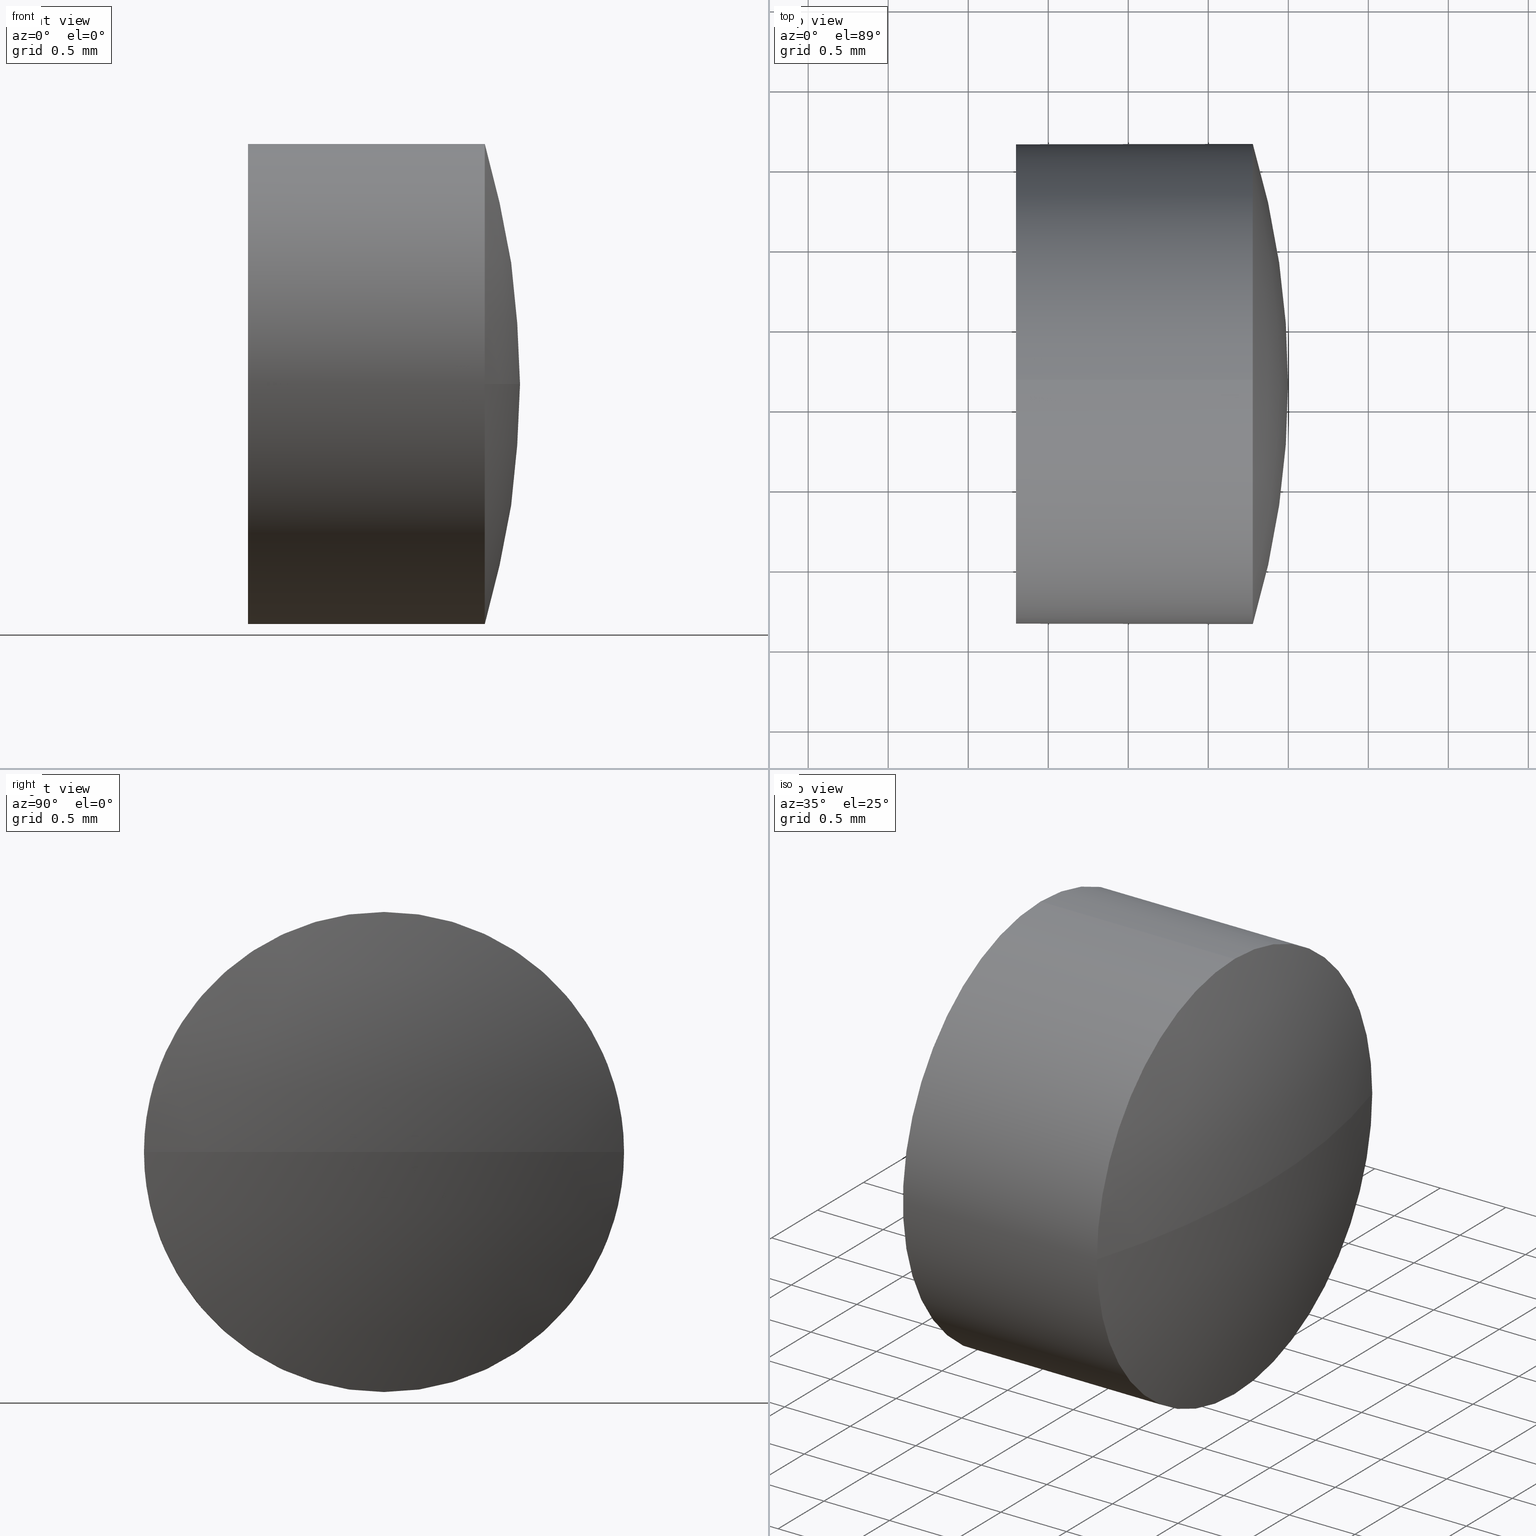
[diagram: canonical four-view strip — front | top / right | iso, engineering-drawing reading convention]
A machine part, canonical four-view strip (front | top / right | iso — engineering-drawing reading convention). The complete STEP part file that produces these views, byte-faithful:
ISO-10303-21;
HEADER;
FILE_DESCRIPTION (( 'STEP AP214' ),
    '1' );
FILE_NAME ('100087.STEP',
    '2019-05-13T02:27:40',
    ( '' ),
    ( '' ),
    'SwSTEP 2.0',
    'SolidWorks 2016',
    '' );
FILE_SCHEMA (( 'AUTOMOTIVE_DESIGN' ));
ENDSEC;

DATA;
#1 =( GEOMETRIC_REPRESENTATION_CONTEXT ( 3 ) GLOBAL_UNCERTAINTY_ASSIGNED_CONTEXT ( ( #95 ) ) GLOBAL_UNIT_ASSIGNED_CONTEXT ( ( #62, #166, #77 ) ) REPRESENTATION_CONTEXT ( 'NONE', 'WORKASPACE' ) );
#2 = ORIENTED_EDGE ( 'NONE', *, *, #38, .F. ) ;
#3 = CYLINDRICAL_SURFACE ( 'NONE', #140, 1.499999999984999600 ) ;
#4 = PRODUCT_DEFINITION_FORMATION_WITH_SPECIFIED_SOURCE ( '�κ�', '', #100, .NOT_KNOWN. ) ;
#5 = ADVANCED_FACE ( 'NONE', ( #84 ), #3, .T. ) ;
#6 = COLOUR_RGB ( '',1.000000000000000000, 1.000000000000000000, 1.000000000000000000 ) ;
#7 = DIRECTION ( 'NONE',  ( 0.0000000000000000000, 0.0000000000000000000, 1.000000000000000000 ) ) ;
#8 = EDGE_LOOP ( 'NONE', ( #112, #181, #176, #101 ) ) ;
#9 = DIRECTION ( 'NONE',  ( -1.000000000000000000, -0.0000000000000000000, -0.0000000000000000000 ) ) ;
#10 = CARTESIAN_POINT ( 'NONE',  ( 475.5668287604860300, 73.14784035914851800, -1.499999999984999600 ) ) ;
#11 = CIRCLE ( 'NONE', #99, 1.499999999984999600 ) ;
#12 = CARTESIAN_POINT ( 'NONE',  ( 477.2783291331324400, 73.14784035914851800, 1.499999999984999600 ) ) ;
#13 = STYLED_ITEM ( 'NONE', ( #185 ), #162 ) ;
#14 = AXIS2_PLACEMENT_3D ( 'NONE', #37, #172, #83 ) ;
#15 = DIRECTION ( 'NONE',  ( -1.000000000000000000, -0.0000000000000000000, -0.0000000000000000000 ) ) ;
#16 = EDGE_LOOP ( 'NONE', ( #177, #145, #34, #163, #134 ) ) ;
#17 = APPLICATION_PROTOCOL_DEFINITION ( 'draft international standard', 'automotive_design', 1998, #49 ) ;
#18 = EDGE_CURVE ( 'NONE', #175, #160, #74, .T. ) ;
#19 = CARTESIAN_POINT ( 'NONE',  ( 477.2783291331324400, 73.14784035914851800, 0.0000000000000000000 ) ) ;
#20 = DIRECTION ( 'NONE',  ( -1.000000000000000000, -0.0000000000000000000, -0.0000000000000000000 ) ) ;
#21 = PRESENTATION_STYLE_ASSIGNMENT (( #136 ) ) ;
#22 = DIRECTION ( 'NONE',  ( 0.0000000000000000000, 0.0000000000000000000, -1.000000000000000000 ) ) ;
#23 = PLANE ( 'NONE',  #47 ) ;
#24 = ORIENTED_EDGE ( 'NONE', *, *, #86, .T. ) ;
#25 =( LENGTH_UNIT ( ) NAMED_UNIT ( * ) SI_UNIT ( .MILLI., .METRE. ) );
#26 = FILL_AREA_STYLE ('',( #111 ) ) ;
#27 = CLOSED_SHELL ( 'NONE', ( #89, #73, #44, #5, #56 ) ) ;
#28 = CIRCLE ( 'NONE', #123, 1.499999999984999600 ) ;
#29 = VECTOR ( 'NONE', #149, 1000.000000000000000 ) ;
#30 = CARTESIAN_POINT ( 'NONE',  ( 472.2751274152541300, 73.14784035914854600, 0.0000000000000000000 ) ) ;
#31 = DIRECTION ( 'NONE',  ( 0.0000000000000000000, 0.0000000000000000000, 1.000000000000000000 ) ) ;
#32 = FILL_AREA_STYLE_COLOUR ( '', #6 ) ;
#33 = EDGE_CURVE ( 'NONE', #114, #93, #42, .T. ) ;
#34 = ORIENTED_EDGE ( 'NONE', *, *, #115, .F. ) ;
#35 = DIRECTION ( 'NONE',  ( 0.0000000000000000000, 0.0000000000000000000, 1.000000000000000000 ) ) ;
#36 = PRODUCT_DEFINITION_CONTEXT ( 'detailed design', #49, 'design' ) ;
#37 = CARTESIAN_POINT ( 'NONE',  ( 0.0000000000000000000, 0.0000000000000000000, 0.0000000000000000000 ) ) ;
#38 = EDGE_CURVE ( 'NONE', #126, #114, #118, .T. ) ;
#39 = EDGE_LOOP ( 'NONE', ( #116, #98, #24, #51, #69 ) ) ;
#40 =( NAMED_UNIT ( * ) SI_UNIT ( $, .STERADIAN. ) SOLID_ANGLE_UNIT ( ) );
#41 = EDGE_CURVE ( 'NONE', #65, #160, #70, .T. ) ;
#42 = CIRCLE ( 'NONE', #182, 1.499999999984999600 ) ;
#43 = AXIS2_PLACEMENT_3D ( 'NONE', #80, #183, #66 ) ;
#44 = ADVANCED_FACE ( 'NONE', ( #150 ), #186, .T. ) ;
#45 = CARTESIAN_POINT ( 'NONE',  ( 475.7983291331472600, 73.14784035914851800, 0.0000000000000000000 ) ) ;
#46 = CARTESIAN_POINT ( 'NONE',  ( 475.7983291331472600, 73.14784035914851800, 0.0000000000000000000 ) ) ;
#47 = AXIS2_PLACEMENT_3D ( 'NONE', #46, #96, #22 ) ;
#48 =( NAMED_UNIT ( * ) SI_UNIT ( $, .STERADIAN. ) SOLID_ANGLE_UNIT ( ) );
#49 = APPLICATION_CONTEXT ( 'automotive_design' ) ;
#50 = EDGE_CURVE ( 'NONE', #175, #126, #11, .T. ) ;
#51 = ORIENTED_EDGE ( 'NONE', *, *, #18, .T. ) ;
#52 =( GEOMETRIC_REPRESENTATION_CONTEXT ( 3 ) GLOBAL_UNCERTAINTY_ASSIGNED_CONTEXT ( ( #54 ) ) GLOBAL_UNIT_ASSIGNED_CONTEXT ( ( #97, #184, #48 ) ) REPRESENTATION_CONTEXT ( 'NONE', 'WORKASPACE' ) );
#53 = VECTOR ( 'NONE', #91, 1000.000000000000000 ) ;
#54 = UNCERTAINTY_MEASURE_WITH_UNIT (LENGTH_MEASURE( 1.000000000000000100E-005 ), #97, 'distance_accuracy_value', 'NONE');
#55 = EDGE_CURVE ( 'NONE', #110, #93, #81, .T. ) ;
#56 = ADVANCED_FACE ( 'NONE', ( #146 ), #23, .F. ) ;
#57 = MANIFOLD_SOLID_BREP ( '��ת1', #27 ) ;
#58 = CIRCLE ( 'NONE', #43, 1.499999999984999600 ) ;
#59 = EDGE_LOOP ( 'NONE', ( #153, #170, #103, #2 ) ) ;
#60 = CARTESIAN_POINT ( 'NONE',  ( 477.2783291331324400, 73.14784035914851800, 0.0000000000000000000 ) ) ;
#61 = DIRECTION ( 'NONE',  ( 0.0000000000000000000, 0.0000000000000000000, 1.000000000000000000 ) ) ;
#62 =( LENGTH_UNIT ( ) NAMED_UNIT ( * ) SI_UNIT ( .MILLI., .METRE. ) );
#63 = AXIS2_PLACEMENT_3D ( 'NONE', #60, #133, #164 ) ;
#64 = CARTESIAN_POINT ( 'NONE',  ( 477.4983474402708900, 73.14784035914854600, 0.0000000000000000000 ) ) ;
#65 = VERTEX_POINT ( 'NONE', #154 ) ;
#66 = DIRECTION ( 'NONE',  ( 0.0000000000000000000, 0.0000000000000000000, 1.000000000000000000 ) ) ;
#67 = PRESENTATION_LAYER_ASSIGNMENT (  '', '', ( #147 ) ) ;
#68 = SURFACE_STYLE_USAGE ( .BOTH. , #109 ) ;
#69 = ORIENTED_EDGE ( 'NONE', *, *, #41, .F. ) ;
#70 = CIRCLE ( 'NONE', #132, 1.499999999984999600 ) ;
#71 = ORIENTED_EDGE ( 'NONE', *, *, #41, .T. ) ;
#72 = DIRECTION ( 'NONE',  ( 0.0000000000000000000, 0.0000000000000000000, 1.000000000000000000 ) ) ;
#73 = ADVANCED_FACE ( 'NONE', ( #105 ), #157, .T. ) ;
#74 = LINE ( 'NONE', #88, #29 ) ;
#75 =( GEOMETRIC_REPRESENTATION_CONTEXT ( 3 ) GLOBAL_UNCERTAINTY_ASSIGNED_CONTEXT ( ( #169 ) ) GLOBAL_UNIT_ASSIGNED_CONTEXT ( ( #25, #127, #40 ) ) REPRESENTATION_CONTEXT ( 'NONE', 'WORKASPACE' ) );
#76 = CARTESIAN_POINT ( 'NONE',  ( 477.2783291331324400, 74.64784035913355400, 1.836970198702661100E-016 ) ) ;
#77 =( NAMED_UNIT ( * ) SI_UNIT ( $, .STERADIAN. ) SOLID_ANGLE_UNIT ( ) );
#78 = CARTESIAN_POINT ( 'NONE',  ( 477.2783291331324400, 73.14784035914851800, -1.499999999984999600 ) ) ;
#79 = PRESENTATION_LAYER_ASSIGNMENT (  '', '', ( #13 ) ) ;
#80 = CARTESIAN_POINT ( 'NONE',  ( 475.7983291331472600, 73.14784035914851800, 0.0000000000000000000 ) ) ;
#81 = CIRCLE ( 'NONE', #165, 5.223220025016739300 ) ;
#82 = SURFACE_STYLE_FILL_AREA ( #26 ) ;
#83 = DIRECTION ( 'NONE',  ( 1.000000000000000000, 0.0000000000000000000, 0.0000000000000000000 ) ) ;
#84 = FACE_OUTER_BOUND ( 'NONE', #39, .T. ) ;
#85 = MECHANICAL_DESIGN_GEOMETRIC_PRESENTATION_REPRESENTATION (  '', ( #147 ), #1 ) ;
#86 = EDGE_CURVE ( 'NONE', #93, #175, #28, .T. ) ;
#87 = DIRECTION ( 'NONE',  ( 0.0000000000000000000, 0.0000000000000000000, 1.000000000000000000 ) ) ;
#88 = CARTESIAN_POINT ( 'NONE',  ( 475.5668287604860300, 73.14784035914851800, 1.499999999984999600 ) ) ;
#89 = ADVANCED_FACE ( 'NONE', ( #161 ), #148, .T. ) ;
#90 = SHAPE_DEFINITION_REPRESENTATION ( #143, #162 ) ;
#91 = DIRECTION ( 'NONE',  ( -1.000000000000000000, -0.0000000000000000000, -0.0000000000000000000 ) ) ;
#92 = LINE ( 'NONE', #10, #53 ) ;
#93 = VERTEX_POINT ( 'NONE', #167 ) ;
#94 = DIRECTION ( 'NONE',  ( -1.000000000000000000, -0.0000000000000000000, -0.0000000000000000000 ) ) ;
#95 = UNCERTAINTY_MEASURE_WITH_UNIT (LENGTH_MEASURE( 1.000000000000000100E-005 ), #62, 'distance_accuracy_value', 'NONE');
#96 = DIRECTION ( 'NONE',  ( 1.000000000000000000, 0.0000000000000000000, 0.0000000000000000000 ) ) ;
#97 =( LENGTH_UNIT ( ) NAMED_UNIT ( * ) SI_UNIT ( .MILLI., .METRE. ) );
#98 = ORIENTED_EDGE ( 'NONE', *, *, #33, .T. ) ;
#99 = AXIS2_PLACEMENT_3D ( 'NONE', #119, #94, #7 ) ;
#100 = PRODUCT ( '100087', '100087', '', ( #142 ) ) ;
#101 = ORIENTED_EDGE ( 'NONE', *, *, #86, .F. ) ;
#102 = AXIS2_PLACEMENT_3D ( 'NONE', #158, #125, #141 ) ;
#103 = ORIENTED_EDGE ( 'NONE', *, *, #33, .F. ) ;
#104 = CARTESIAN_POINT ( 'NONE',  ( 475.5668287604860300, 73.14784035914851800, 0.0000000000000000000 ) ) ;
#105 = FACE_OUTER_BOUND ( 'NONE', #8, .T. ) ;
#106 = SURFACE_STYLE_FILL_AREA ( #122 ) ;
#107 = DIRECTION ( 'NONE',  ( 0.0000000000000000000, 0.0000000000000000000, 1.000000000000000000 ) ) ;
#108 = DIRECTION ( 'NONE',  ( 0.0000000000000000000, 0.0000000000000000000, -1.000000000000000000 ) ) ;
#109 = SURFACE_SIDE_STYLE ('',( #82 ) ) ;
#110 = VERTEX_POINT ( 'NONE', #64 ) ;
#111 = FILL_AREA_STYLE_COLOUR ( '', #173 ) ;
#112 = ORIENTED_EDGE ( 'NONE', *, *, #55, .F. ) ;
#113 = AXIS2_PLACEMENT_3D ( 'NONE', #120, #31, #139 ) ;
#114 = VERTEX_POINT ( 'NONE', #78 ) ;
#115 = EDGE_CURVE ( 'NONE', #160, #65, #58, .T. ) ;
#116 = ORIENTED_EDGE ( 'NONE', *, *, #117, .F. ) ;
#117 = EDGE_CURVE ( 'NONE', #114, #65, #92, .T. ) ;
#118 = CIRCLE ( 'NONE', #63, 1.499999999984999600 ) ;
#119 = CARTESIAN_POINT ( 'NONE',  ( 477.2783291331324400, 73.14784035914851800, 0.0000000000000000000 ) ) ;
#120 = CARTESIAN_POINT ( 'NONE',  ( 472.2751274152541300, 73.14784035914854600, 0.0000000000000000000 ) ) ;
#121 = CARTESIAN_POINT ( 'NONE',  ( 472.2751274152541300, 73.14784035914854600, 0.0000000000000000000 ) ) ;
#122 = FILL_AREA_STYLE ('',( #32 ) ) ;
#123 = AXIS2_PLACEMENT_3D ( 'NONE', #180, #9, #61 ) ;
#124 = DIRECTION ( 'NONE',  ( 0.0000000000000000000, -1.000000000000000000, 0.0000000000000000000 ) ) ;
#125 = DIRECTION ( 'NONE',  ( 0.0000000000000000000, -1.224646799147353200E-016, 1.000000000000000000 ) ) ;
#126 = VERTEX_POINT ( 'NONE', #76 ) ;
#127 =( NAMED_UNIT ( * ) PLANE_ANGLE_UNIT ( ) SI_UNIT ( $, .RADIAN. ) );
#128 = APPLICATION_PROTOCOL_DEFINITION ( 'draft international standard', 'automotive_design', 1998, #156 ) ;
#129 = EDGE_LOOP ( 'NONE', ( #138, #71 ) ) ;
#130 = DIRECTION ( 'NONE',  ( -1.000000000000000000, -0.0000000000000000000, -0.0000000000000000000 ) ) ;
#131 = PRODUCT_DEFINITION ( 'δ֪', '', #4, #36 ) ;
#132 = AXIS2_PLACEMENT_3D ( 'NONE', #45, #20, #152 ) ;
#133 = DIRECTION ( 'NONE',  ( -1.000000000000000000, -0.0000000000000000000, -0.0000000000000000000 ) ) ;
#134 = ORIENTED_EDGE ( 'NONE', *, *, #50, .T. ) ;
#135 = DIRECTION ( 'NONE',  ( -1.000000000000000000, -0.0000000000000000000, -0.0000000000000000000 ) ) ;
#136 = SURFACE_STYLE_USAGE ( .BOTH. , #151 ) ;
#137 = CARTESIAN_POINT ( 'NONE',  ( 475.7983291331472600, 73.14784035914851800, 1.499999999984999600 ) ) ;
#138 = ORIENTED_EDGE ( 'NONE', *, *, #115, .T. ) ;
#139 = DIRECTION ( 'NONE',  ( 0.0000000000000000000, -1.000000000000000000, 0.0000000000000000000 ) ) ;
#140 = AXIS2_PLACEMENT_3D ( 'NONE', #104, #15, #87 ) ;
#141 = DIRECTION ( 'NONE',  ( 0.0000000000000000000, -1.000000000000000000, -1.224646799147353000E-016 ) ) ;
#142 = PRODUCT_CONTEXT ( 'NONE', #156, 'mechanical' ) ;
#143 = PRODUCT_DEFINITION_SHAPE ( 'NONE', 'NONE',  #131 ) ;
#144 = PRODUCT_RELATED_PRODUCT_CATEGORY ( 'part', '', ( #100 ) ) ;
#145 = ORIENTED_EDGE ( 'NONE', *, *, #117, .T. ) ;
#146 = FACE_OUTER_BOUND ( 'NONE', #129, .T. ) ;
#147 = STYLED_ITEM ( 'NONE', ( #21 ), #57 ) ;
#148 = CYLINDRICAL_SURFACE ( 'NONE', #171, 1.499999999984999600 ) ;
#149 = DIRECTION ( 'NONE',  ( -1.000000000000000000, -0.0000000000000000000, -0.0000000000000000000 ) ) ;
#150 = FACE_OUTER_BOUND ( 'NONE', #59, .T. ) ;
#151 = SURFACE_SIDE_STYLE ('',( #106 ) ) ;
#152 = DIRECTION ( 'NONE',  ( 0.0000000000000000000, 0.0000000000000000000, 1.000000000000000000 ) ) ;
#153 = ORIENTED_EDGE ( 'NONE', *, *, #174, .F. ) ;
#154 = CARTESIAN_POINT ( 'NONE',  ( 475.7983291331472600, 73.14784035914851800, -1.499999999984999600 ) ) ;
#155 = DIRECTION ( 'NONE',  ( -1.000000000000000000, 0.0000000000000000000, 0.0000000000000000000 ) ) ;
#156 = APPLICATION_CONTEXT ( 'automotive_design' ) ;
#157 = SPHERICAL_SURFACE ( 'NONE', #113, 5.223220025016723300 ) ;
#158 = CARTESIAN_POINT ( 'NONE',  ( 472.2751274152541300, 73.14784035914854600, 0.0000000000000000000 ) ) ;
#159 = AXIS2_PLACEMENT_3D ( 'NONE', #121, #107, #124 ) ;
#160 = VERTEX_POINT ( 'NONE', #137 ) ;
#161 = FACE_OUTER_BOUND ( 'NONE', #16, .T. ) ;
#162 = ADVANCED_BREP_SHAPE_REPRESENTATION ( '100087', ( #57, #14 ), #52 ) ;
#163 = ORIENTED_EDGE ( 'NONE', *, *, #18, .F. ) ;
#164 = DIRECTION ( 'NONE',  ( 0.0000000000000000000, 0.0000000000000000000, 1.000000000000000000 ) ) ;
#165 = AXIS2_PLACEMENT_3D ( 'NONE', #30, #108, #155 ) ;
#166 =( NAMED_UNIT ( * ) PLANE_ANGLE_UNIT ( ) SI_UNIT ( $, .RADIAN. ) );
#167 = CARTESIAN_POINT ( 'NONE',  ( 477.2783291331324400, 71.64784035916352400, 0.0000000000000000000 ) ) ;
#168 = CARTESIAN_POINT ( 'NONE',  ( 475.5668287604860300, 73.14784035914851800, 0.0000000000000000000 ) ) ;
#169 = UNCERTAINTY_MEASURE_WITH_UNIT (LENGTH_MEASURE( 1.000000000000000100E-005 ), #25, 'distance_accuracy_value', 'NONE');
#170 = ORIENTED_EDGE ( 'NONE', *, *, #55, .T. ) ;
#171 = AXIS2_PLACEMENT_3D ( 'NONE', #168, #135, #35 ) ;
#172 = DIRECTION ( 'NONE',  ( 0.0000000000000000000, 0.0000000000000000000, 1.000000000000000000 ) ) ;
#173 = COLOUR_RGB ( '',1.000000000000000000, 1.000000000000000000, 1.000000000000000000 ) ;
#174 = EDGE_CURVE ( 'NONE', #110, #126, #179, .T. ) ;
#175 = VERTEX_POINT ( 'NONE', #12 ) ;
#176 = ORIENTED_EDGE ( 'NONE', *, *, #50, .F. ) ;
#177 = ORIENTED_EDGE ( 'NONE', *, *, #38, .T. ) ;
#178 = MECHANICAL_DESIGN_GEOMETRIC_PRESENTATION_REPRESENTATION (  '', ( #13 ), #75 ) ;
#179 = CIRCLE ( 'NONE', #102, 5.223220025016725100 ) ;
#180 = CARTESIAN_POINT ( 'NONE',  ( 477.2783291331324400, 73.14784035914851800, 0.0000000000000000000 ) ) ;
#181 = ORIENTED_EDGE ( 'NONE', *, *, #174, .T. ) ;
#182 = AXIS2_PLACEMENT_3D ( 'NONE', #19, #130, #72 ) ;
#183 = DIRECTION ( 'NONE',  ( -1.000000000000000000, -0.0000000000000000000, -0.0000000000000000000 ) ) ;
#184 =( NAMED_UNIT ( * ) PLANE_ANGLE_UNIT ( ) SI_UNIT ( $, .RADIAN. ) );
#185 = PRESENTATION_STYLE_ASSIGNMENT (( #68 ) ) ;
#186 = SPHERICAL_SURFACE ( 'NONE', #159, 5.223220025016723300 ) ;
ENDSEC;
END-ISO-10303-21;
